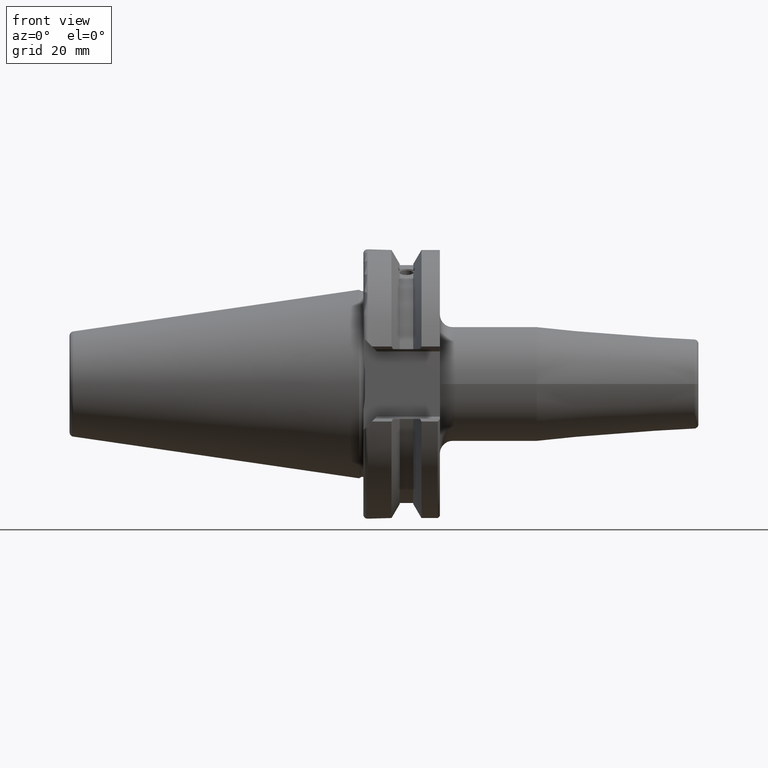
[diagram: clean part render]
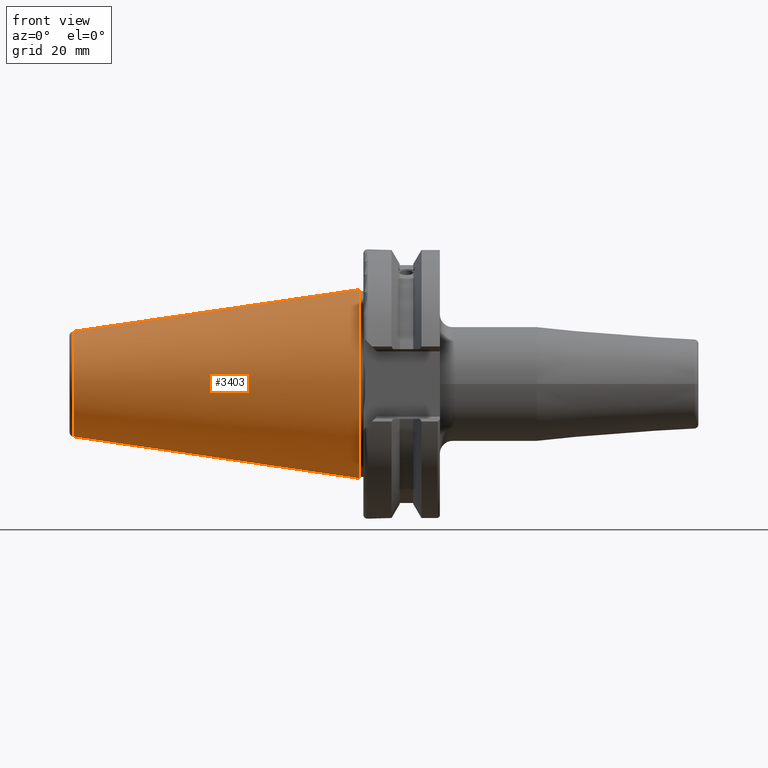
[diagram: same view with one face highlighted and labeled with its STEP entity id]
A machine part, front view. The second image highlights one B-rep face of the part: STEP entity #3403.
In plain terms, the highlighted conical surface has half-angle 8.297 deg.
Its self-contained STEP definition (entity closure, byte-faithful):
#1001=CARTESIAN_POINT('',(-6.739430687632E1,0.E0,0.E0));
#1002=DIRECTION('',(-1.E0,0.E0,0.E0));
#1003=DIRECTION('',(0.E0,0.E0,-1.E0));
#1004=AXIS2_PLACEMENT_3D('',#1001,#1002,#1003);
#1006=DIRECTION('',(-9.895329835059E-1,-1.947755452379E-13,-1.443068763221E-1));
#1007=VECTOR('',#1006,6.810718591466E1);
#1008=CARTESIAN_POINT('',(0.E0,0.E0,2.2225E1));
#1009=LINE('',#1008,#1007);
#1010=CARTESIAN_POINT('',(0.E0,0.E0,0.E0));
#1011=DIRECTION('',(1.E0,0.E0,0.E0));
#1012=DIRECTION('',(0.E0,0.E0,1.E0));
#1013=AXIS2_PLACEMENT_3D('',#1010,#1011,#1012);
#1015=DIRECTION('',(-9.895329835059E-1,1.947888560543E-13,1.443068763221E-1));
#1016=VECTOR('',#1015,6.810718591466E1);
#1017=CARTESIAN_POINT('',(0.E0,0.E0,-2.2225E1));
#1018=LINE('',#1017,#1016);
#1765=CARTESIAN_POINT('',(0.E0,0.E0,-2.2225E1));
#1766=CARTESIAN_POINT('',(0.E0,0.E0,2.2225E1));
#1767=VERTEX_POINT('',#1765);
#1768=VERTEX_POINT('',#1766);
#1849=CARTESIAN_POINT('',(-6.739430687632E1,0.E0,-1.239666474557E1));
#1850=CARTESIAN_POINT('',(-6.739430687632E1,0.E0,1.239666474557E1));
#1851=VERTEX_POINT('',#1849);
#1852=VERTEX_POINT('',#1850);
#3391=CARTESIAN_POINT('',(-3.369715343816E1,0.E0,0.E0));
#3392=DIRECTION('',(1.E0,0.E0,0.E0));
#3393=DIRECTION('',(0.E0,0.E0,1.E0));
#3394=AXIS2_PLACEMENT_3D('',#3391,#3392,#3393);
#3395=CONICAL_SURFACE('',#3394,1.731083237279E1,8.297144E0);
#3397=ORIENTED_EDGE('',*,*,#3396,.T.);
#3398=ORIENTED_EDGE('',*,*,#2122,.F.);
#3399=ORIENTED_EDGE('',*,*,#3381,.T.);
#3400=ORIENTED_EDGE('',*,*,#2118,.T.);
#3401=EDGE_LOOP('',(#3397,#3398,#3399,#3400));
#3402=FACE_OUTER_BOUND('',#3401,.F.);
#3403=ADVANCED_FACE('',(#3402),#3395,.T.);
#1005=CIRCLE('',#1004,1.239666474557E1);
#1014=CIRCLE('',#1013,2.2225E1);
#2118=EDGE_CURVE('',#1767,#1851,#1018,.T.);
#2122=EDGE_CURVE('',#1768,#1852,#1009,.T.);
#3381=EDGE_CURVE('',#1768,#1767,#1014,.T.);
#3396=EDGE_CURVE('',#1851,#1852,#1005,.T.);